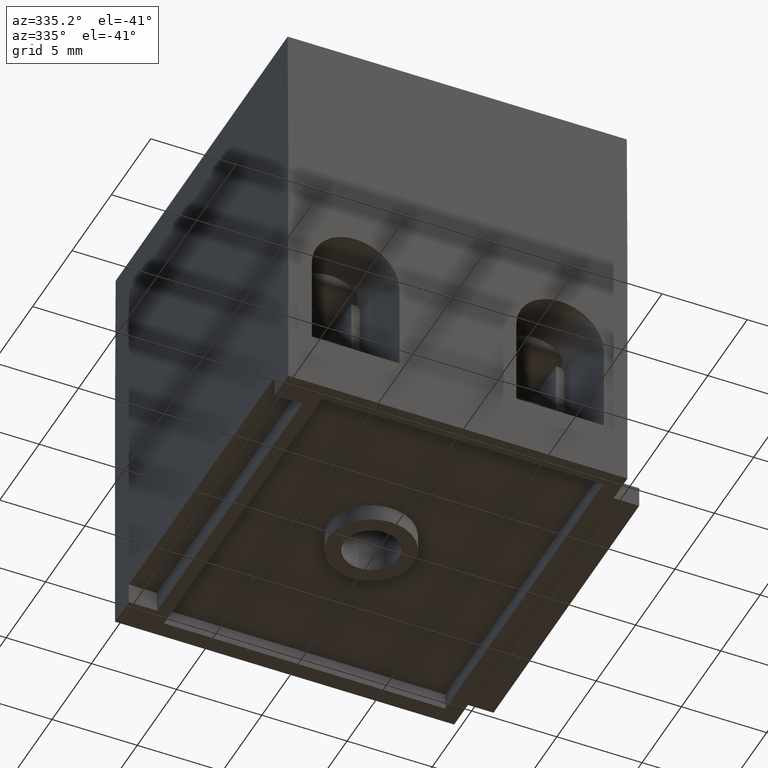
[diagram: clean part render]
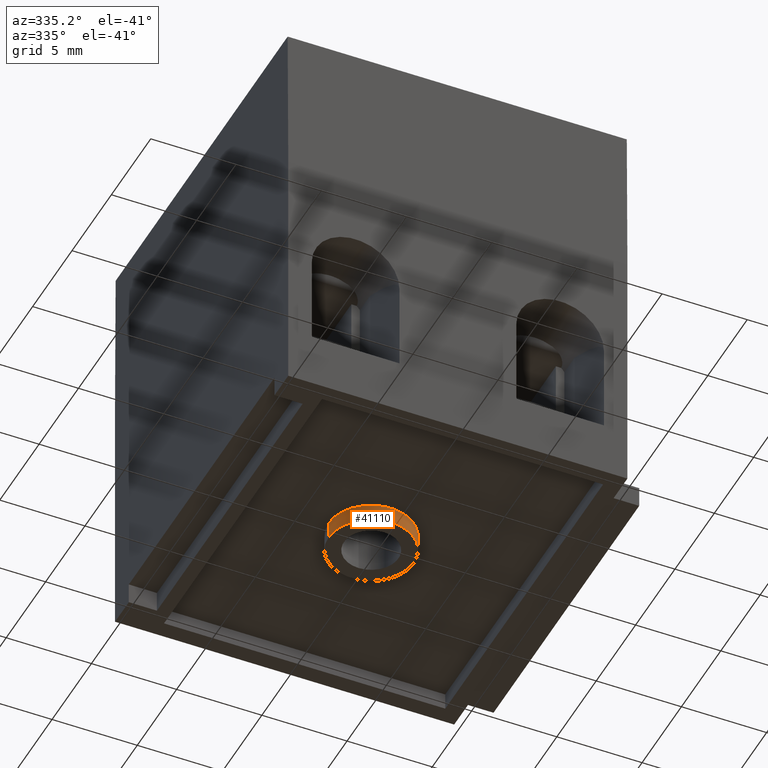
[diagram: same view with one face highlighted and labeled with its STEP entity id]
A machine part, auxiliary view. The second image highlights one B-rep face of the part: STEP entity #41110.
In plain terms, the highlighted cylindrical surface (partial cylindrical patch) has radius 2.5 mm, axis along (0, 0, 1).
Its self-contained STEP definition (entity closure, byte-faithful):
#40520=CARTESIAN_POINT('',(49.404081,0.156191000000002,10.));
#40530=DIRECTION('',(1.11022302462516E-16,1.,4.62223186652936E-33));
#40540=DIRECTION('',(-4.16333634234434E-17,-1.3684555315672E-48,1.));
#40550=AXIS2_PLACEMENT_3D('',#40520,#40530,#40540);
#40560=CIRCLE('',#40550,2.5);
#40570=CARTESIAN_POINT('',(49.404081,0.156191000000002,12.5));
#40580=VERTEX_POINT('',#40570);
#40590=CARTESIAN_POINT('',(49.404081,0.156191000000002,7.50000000000005)
);
#40600=VERTEX_POINT('',#40590);
#40630=EDGE_CURVE('',#40600,#40580,#40560,.T.);
#40800=CARTESIAN_POINT('',(49.404081,0.156191000000002,10.));
#40810=DIRECTION('',(1.11022302462516E-16,1.,4.62223186652936E-33));
#40820=DIRECTION('',(-4.16333634234434E-17,-1.3684555315672E-48,1.));
#40830=AXIS2_PLACEMENT_3D('',#40800,#40810,#40820);
#40840=CYLINDRICAL_SURFACE('',#40830,2.5);
#40850=CARTESIAN_POINT('',(49.404081,0.156191000000002,12.5));
#40860=DIRECTION('',(1.11022302462516E-16,1.,4.62223186652936E-33));
#40870=VECTOR('',#40860,1.);
#40880=LINE('',#40850,#40870);
#40890=CARTESIAN_POINT('',(49.404081,1.156191,12.5));
#40900=VERTEX_POINT('',#40890);
#40910=EDGE_CURVE('',#40580,#40900,#40880,.T.);
#40920=ORIENTED_EDGE('',*,*,#40910,.T.);
#40930=ORIENTED_EDGE('',*,*,#40630,.T.);
#40940=CARTESIAN_POINT('',(49.404081,0.156191000000002,7.50000000000005)
);
#40950=DIRECTION('',(1.11022302462516E-16,1.,4.62223186652936E-33));
#40960=VECTOR('',#40950,1.);
#40970=LINE('',#40940,#40960);
#40980=CARTESIAN_POINT('',(49.404081,1.156191,7.50000000000005));
#40990=VERTEX_POINT('',#40980);
#41000=EDGE_CURVE('',#40600,#40990,#40970,.T.);
#41010=ORIENTED_EDGE('',*,*,#41000,.F.);
#41020=CARTESIAN_POINT('',(49.404081,1.156191,10.));
#41030=DIRECTION('',(1.11022302462516E-16,1.,4.62223186652936E-33));
#41040=DIRECTION('',(-4.16333634234434E-17,-1.3684555315672E-48,1.));
#41050=AXIS2_PLACEMENT_3D('',#41020,#41030,#41040);
#41060=CIRCLE('',#41050,2.5);
#41070=EDGE_CURVE('',#40990,#40900,#41060,.T.);
#41080=ORIENTED_EDGE('',*,*,#41070,.F.);
#41090=EDGE_LOOP('',(#41080,#41010,#40930,#40920));
#41100=FACE_OUTER_BOUND('',#41090,.T.);
#41110=ADVANCED_FACE('',(#41100),#40840,.T.);